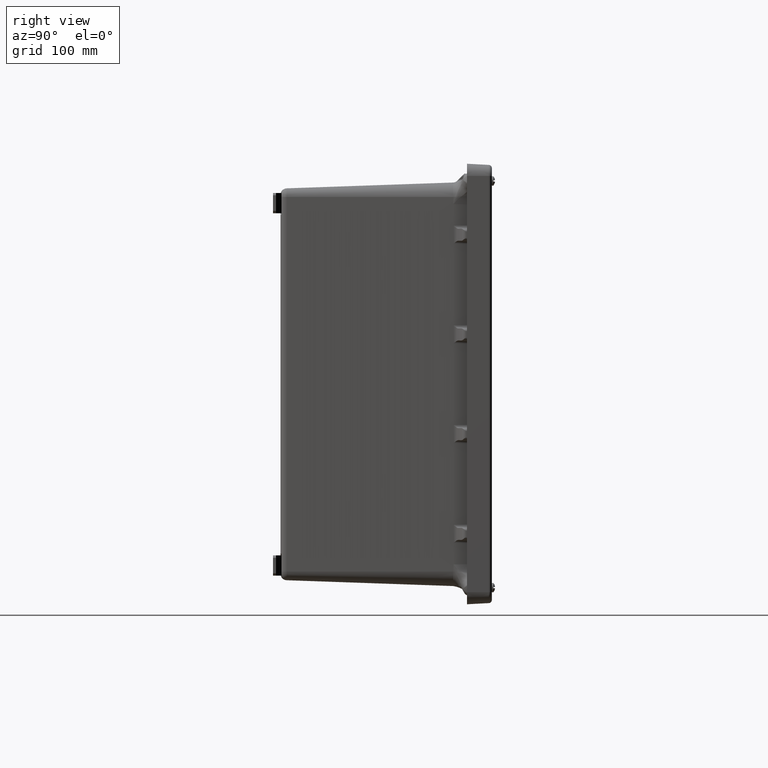
[diagram: clean part render]
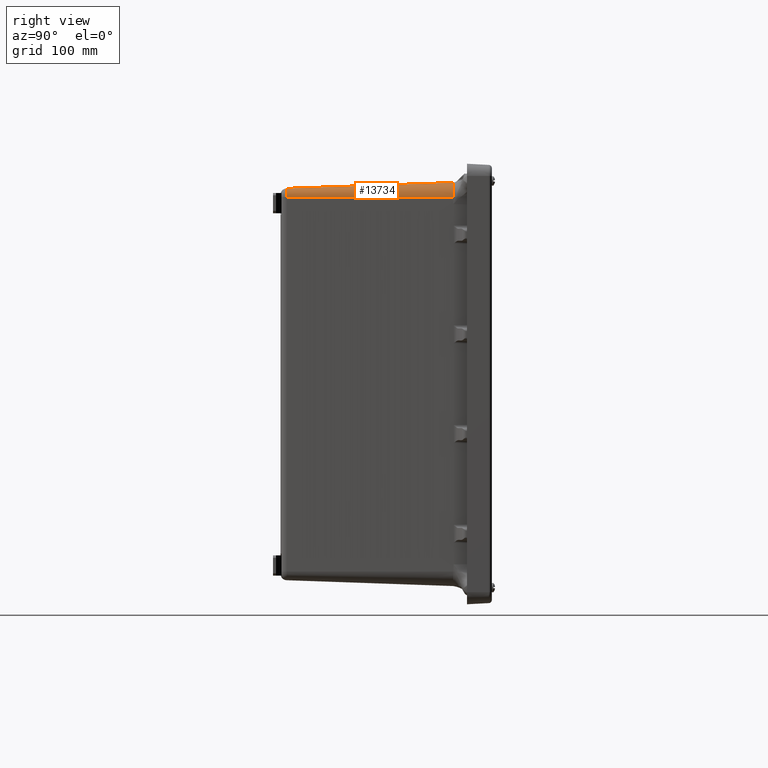
[diagram: same view with one face highlighted and labeled with its STEP entity id]
A machine part, right view. The second image highlights one B-rep face of the part: STEP entity #13734.
In plain terms, the highlighted conical surface has half-angle 2 deg.
Its self-contained STEP definition (entity closure, byte-faithful):
#1646 = AXIS2_PLACEMENT_3D ( 'NONE', #9979, #31727, #24443 ) ;
#2450 = CONICAL_SURFACE ( 'NONE', #1646, 0.6258750000000006300, 0.03490658503988663300 ) ;
#3991 = VERTEX_POINT ( 'NONE', #32665 ) ;
#6508 = DIRECTION ( 'NONE',  ( 0.0000000000000000000, 1.000000000000000000, -0.0000000000000000000 ) ) ;
#6844 = CARTESIAN_POINT ( 'NONE',  ( 9.524765673024003100, -1.203460625607187100, 7.519972762527565600 ) ) ;
#6937 = ORIENTED_EDGE ( 'NONE', *, *, #6981, .T. ) ;
#6981 = EDGE_CURVE ( 'NONE', #7036, #19177, #25074, .T. ) ;
#7036 = VERTEX_POINT ( 'NONE', #17779 ) ;
#7464 = EDGE_CURVE ( 'NONE', #19177, #18848, #46376, .T. ) ;
#9979 = CARTESIAN_POINT ( 'NONE',  ( 9.524765673024003100, 0.007017149574806738100, 7.519972762527565600 ) ) ;
#10413 = CARTESIAN_POINT ( 'NONE',  ( 10.10836985766198900, -1.203460625607187100, 7.519972762527565600 ) ) ;
#10554 = DIRECTION ( 'NONE',  ( 0.0000000000000000000, 0.0000000000000000000, -1.000000000000000000 ) ) ;
#11206 = ORIENTED_EDGE ( 'NONE', *, *, #33861, .T. ) ;
#13327 = DIRECTION ( 'NONE',  ( 0.0000000000000000000, 0.9993908270190957600, 0.03489949670250101100 ) ) ;
#13734 = ADVANCED_FACE ( 'NONE', ( #31865 ), #2450, .T. ) ;
#13872 = CARTESIAN_POINT ( 'NONE',  ( 10.15064067302400200, 0.007017149574806738100, 7.519972762527565600 ) ) ;
#15596 = CIRCLE ( 'NONE', #25964, 0.5836041846379858000 ) ;
#16801 = CARTESIAN_POINT ( 'NONE',  ( 9.874949505921863500, -7.887744939424663900, 7.519972762527565600 ) ) ;
#17579 = DIRECTION ( 'NONE',  ( 0.03489949670250101100, 0.9993908270190957600, 0.0000000000000000000 ) ) ;
#17779 = CARTESIAN_POINT ( 'NONE',  ( 9.524765673024003100, -7.887744939424663900, 7.870156595425426000 ) ) ;
#18848 = VERTEX_POINT ( 'NONE', #10413 ) ;
#19177 = VERTEX_POINT ( 'NONE', #16801 ) ;
#23194 = EDGE_LOOP ( 'NONE', ( #23281, #6937, #37492, #11206 ) ) ;
#23281 = ORIENTED_EDGE ( 'NONE', *, *, #35464, .F. ) ;
#24443 = DIRECTION ( 'NONE',  ( 0.0000000000000000000, 0.0000000000000000000, 1.000000000000000000 ) ) ;
#25074 = CIRCLE ( 'NONE', #31877, 0.3501838328978602600 ) ;
#25964 = AXIS2_PLACEMENT_3D ( 'NONE', #6844, #32626, #10554 ) ;
#26846 = VECTOR ( 'NONE', #17579, 39.37007874015748900 ) ;
#27633 = VECTOR ( 'NONE', #13327, 39.37007874015748900 ) ;
#28580 = CARTESIAN_POINT ( 'NONE',  ( 9.524765673024003100, -7.887744939424665700, 7.519972762527565600 ) ) ;
#31680 = CARTESIAN_POINT ( 'NONE',  ( 9.524765673024003100, 0.007017149574806738100, 8.145847762527564500 ) ) ;
#31727 = DIRECTION ( 'NONE',  ( 0.0000000000000000000, 1.000000000000000000, 0.0000000000000000000 ) ) ;
#31865 = FACE_OUTER_BOUND ( 'NONE', #23194, .T. ) ;
#31877 = AXIS2_PLACEMENT_3D ( 'NONE', #28580, #6508, #32281 ) ;
#32281 = DIRECTION ( 'NONE',  ( 0.0000000000000000000, 0.0000000000000000000, -1.000000000000000000 ) ) ;
#32626 = DIRECTION ( 'NONE',  ( 0.0000000000000000000, -1.000000000000000000, -0.0000000000000000000 ) ) ;
#32665 = CARTESIAN_POINT ( 'NONE',  ( 9.524765673024003100, -1.203460625607187100, 8.103576947165551700 ) ) ;
#33861 = EDGE_CURVE ( 'NONE', #18848, #3991, #15596, .T. ) ;
#35464 = EDGE_CURVE ( 'NONE', #7036, #3991, #46006, .T. ) ;
#37492 = ORIENTED_EDGE ( 'NONE', *, *, #7464, .T. ) ;
#46006 = LINE ( 'NONE', #31680, #27633 ) ;
#46376 = LINE ( 'NONE', #13872, #26846 ) ;